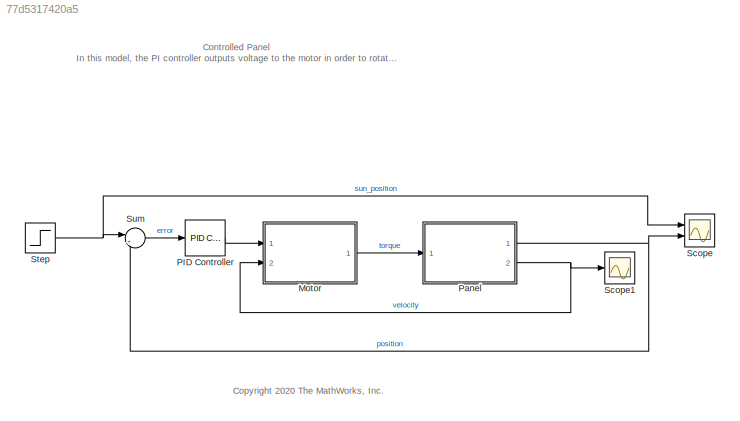
MODEL slx_77d5317420a5
KIND model
CONFIG AbsTol = auto
CONFIG EnableMultiTasking = off
CONFIG FixedStep = auto
CONFIG MaxStep = auto
CONFIG MinStep = auto
CONFIG PreLoadFcn = % Set physical parameters\npanelMotorParams;\n
CONFIG RelTol = 1e-3
CONFIG SampleTimeConstraint = Unconstrained
CONFIG Solver = VariableStepAuto
CONFIG SolverName = VariableStepAuto
CONFIG StartTime = 0.0
CONFIG StopTime = 10.0
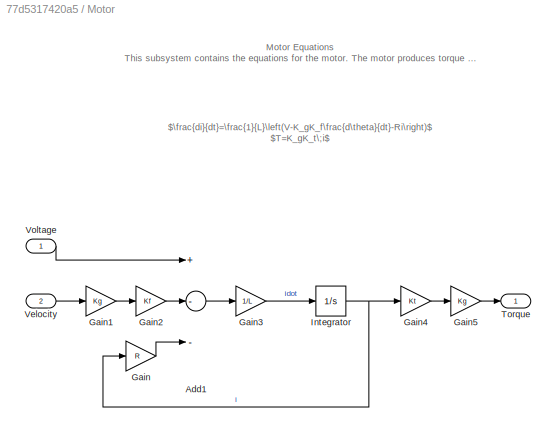
BLOCK [SubSystem] Motor
  Ports = [2, 1]
  RequestExecContextInheritance = off
BLOCK [Sum] Motor/Add1
  InputSameDT = off
  Inputs = +--
  OutDataTypeStr = Inherit: Inherit via internal rule
  Ports = [3, 1]
  SaturateOnIntegerOverflow = off
BLOCK [Gain] Motor/Gain
  Gain = R
  OutDataTypeStr = Inherit: Inherit via internal rule
  ParamDataTypeStr = Inherit: Inherit via internal rule
  SaturateOnIntegerOverflow = off
BLOCK [Gain] Motor/Gain1
  Gain = Kg
  OutDataTypeStr = Inherit: Inherit via internal rule
  ParamDataTypeStr = Inherit: Inherit via internal rule
  SaturateOnIntegerOverflow = off
BLOCK [Gain] Motor/Gain2
  Gain = Kf
  OutDataTypeStr = Inherit: Inherit via internal rule
  ParamDataTypeStr = Inherit: Inherit via internal rule
  SaturateOnIntegerOverflow = off
BLOCK [Gain] Motor/Gain3
  Gain = 1/L
  OutDataTypeStr = Inherit: Inherit via internal rule
  ParamDataTypeStr = Inherit: Inherit via internal rule
  SaturateOnIntegerOverflow = off
BLOCK [Gain] Motor/Gain4
  Gain = Kt
  OutDataTypeStr = Inherit: Inherit via internal rule
  ParamDataTypeStr = Inherit: Inherit via internal rule
  SaturateOnIntegerOverflow = off
BLOCK [Gain] Motor/Gain5
  Gain = Kg
  OutDataTypeStr = Inherit: Inherit via internal rule
  ParamDataTypeStr = Inherit: Inherit via internal rule
  SaturateOnIntegerOverflow = off
BLOCK [Integrator] Motor/Integrator
  Ports = [1, 1]
BLOCK [Outport] Motor/Torque
  IconDisplay = Port number
BLOCK [Inport] Motor/Velocity
  IconDisplay = Port number
  Port = 2
BLOCK [Inport] Motor/Voltage
  IconDisplay = Port number
BLOCK [Reference] PID Controller  REF=simulink/Continuous/PID Controller
  Ports = [1, 1]
  SourceBlock = simulink/Continuous/PID Controller
  SourceProductBaseCode = SL
  SourceProductName = Simulink
  SourceType = PID 1dof
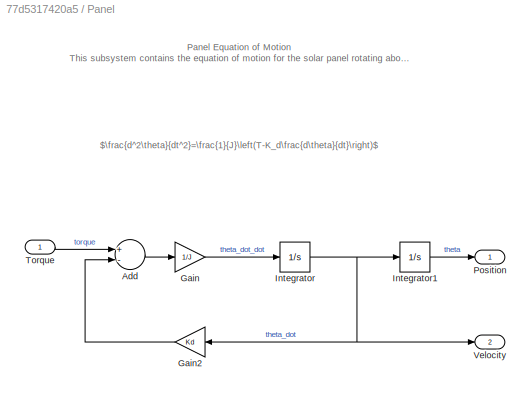
BLOCK [SubSystem] Panel
  Ports = [1, 2]
  RequestExecContextInheritance = off
BLOCK [Sum] Panel/Add
  InputSameDT = off
  Inputs = +-
  OutDataTypeStr = Inherit: Inherit via internal rule
  Ports = [2, 1]
  SaturateOnIntegerOverflow = off
BLOCK [Gain] Panel/Gain
  Gain = 1/J
  OutDataTypeStr = Inherit: Inherit via internal rule
  ParamDataTypeStr = Inherit: Inherit via internal rule
  SaturateOnIntegerOverflow = off
BLOCK [Gain] Panel/Gain2
  Gain = Kd
  OutDataTypeStr = Inherit: Inherit via internal rule
  ParamDataTypeStr = Inherit: Inherit via internal rule
  SaturateOnIntegerOverflow = off
BLOCK [Integrator] Panel/Integrator
  Ports = [1, 1]
BLOCK [Integrator] Panel/Integrator1
  Ports = [1, 1]
BLOCK [Outport] Panel/Position
  IconDisplay = Port number
BLOCK [Inport] Panel/Torque
  IconDisplay = Port number
BLOCK [Outport] Panel/Velocity
  IconDisplay = Port number
  Port = 2
BLOCK [Scope] Scope
  Floating = off
  NumInputPorts = 2
  Ports = [2]
  ScopeSpecificationString = Simulink.scopes.TimeScopeBlockCfg('CurrentConfiguration', extmgr.ConfigurationSet(extmgr.Configuration('Core','General UI',true),extmgr.Configuration('Core','Source UI',true),extmgr.Configuration('Sources','WiredSimulink',true,'DataLoggingVariableName','ScopeData1'),extmgr.Configuration('Visuals','Time Domain',true,'SerializedDisplays',{struct('MinYLimReal','-0.14923','MaxYLimReal','1.34305','YLab...<+1510ch>
BLOCK [Scope] Scope1
  Floating = off
  NumInputPorts = 1
  Ports = [1]
  ScopeSpecificationString = Simulink.scopes.TimeScopeBlockCfg('CurrentConfiguration', extmgr.ConfigurationSet(extmgr.Configuration('Core','General UI',true),extmgr.Configuration('Core','Source UI',true),extmgr.Configuration('Sources','WiredSimulink',true,'DataLoggingVariableName','ScopeData1'),extmgr.Configuration('Visuals','Time Domain',true,'SerializedDisplays',{struct('MinYLimReal','-1.44689','MaxYLimReal','7.18662','YLab...<+1432ch>
BLOCK [Step] Step
  SampleTime = 0
BLOCK [Sum] Sum
  IconShape = round
  InputSameDT = off
  Inputs = |+-
  OutDataTypeStr = Inherit: Inherit via internal rule
  Ports = [2, 1]
  SaturateOnIntegerOverflow = off
ANNOTATION (root): Controlled Panel In this model, the PI controller outputs voltage to the motor in order to rotate the solar panel to a desired position. The reference signal is a unit step.
ANNOTATION (root): <copyright redacted>
ANNOTATION Motor: Motor Equations This subsystem contains the equations for the motor. The motor produces torque to rotate the solar panel.
ANNOTATION Motor: $\frac{di}{dt}=\frac{1}{L}\left(V-K_gK_f\frac{d\theta}{dt}-Ri\right)$ $T=K_gK_t\;i$
ANNOTATION Panel: Panel Equation of Motion This subsystem contains the equation of motion for the solar panel rotating about its central post. The panel's rotation is driven by torque from the motor.
ANNOTATION Panel: $\frac{d^2\theta}{dt^2}=\frac{1}{J}\left(T-K_d\frac{d\theta}{dt}\right)$
LINE Motor/Add1:1 -> Motor/Gain3:1
LINE Motor/Gain1:1 -> Motor/Gain2:1
LINE Motor/Gain2:1 -> Motor/Add1:2
LINE Motor/Gain3:1 -> Motor/Integrator:1
LINE Motor/Gain4:1 -> Motor/Gain5:1
LINE Motor/Gain5:1 -> Motor/Torque:1
LINE Motor/Gain:1 -> Motor/Add1:3
NET Motor/Integrator:1 -> Motor/Gain4:1, Motor/Gain:1
LINE Motor/Velocity:1 -> Motor/Gain1:1
LINE Motor/Voltage:1 -> Motor/Add1:1
LINE Motor:1 -> Panel:1
LINE PID Controller:1 -> Motor:1
LINE Panel/Add:1 -> Panel/Gain:1
LINE Panel/Gain2:1 -> Panel/Add:2
LINE Panel/Gain:1 -> Panel/Integrator:1
LINE Panel/Integrator1:1 -> Panel/Position:1
NET Panel/Integrator:1 -> Panel/Gain2:1, Panel/Integrator1:1, Panel/Velocity:1
LINE Panel/Torque:1 -> Panel/Add:1
NET Panel:1 -> Scope:2, Sum:2
NET Panel:2 -> Motor:2, Scope1:1
NET Step:1 -> Scope:1, Sum:1
LINE Sum:1 -> PID Controller:1
note: NET lines group one-source signal fan-out (src -> all destinations, sorted); 1:1 wires keep LINE
